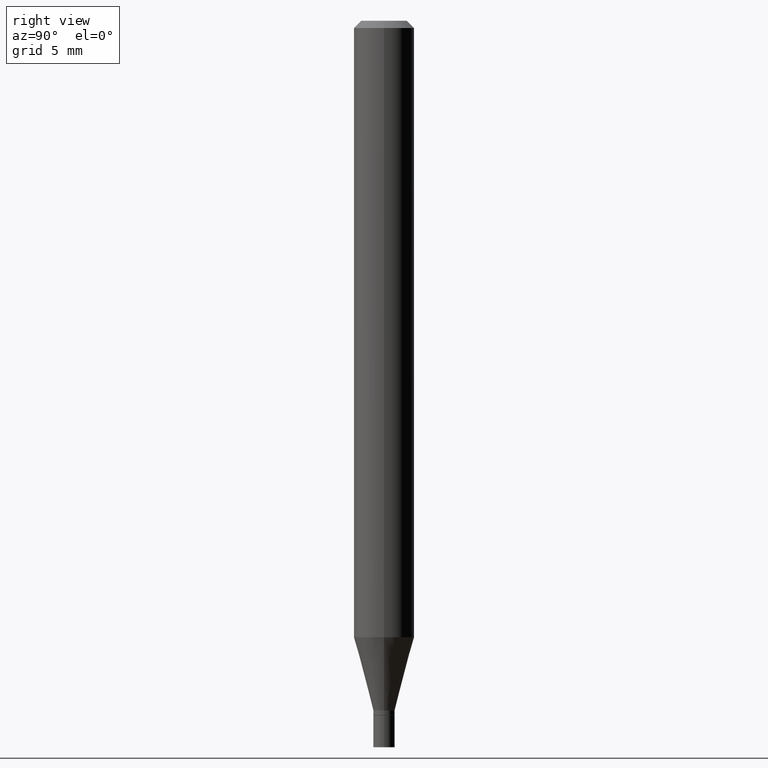
[diagram: clean part render]
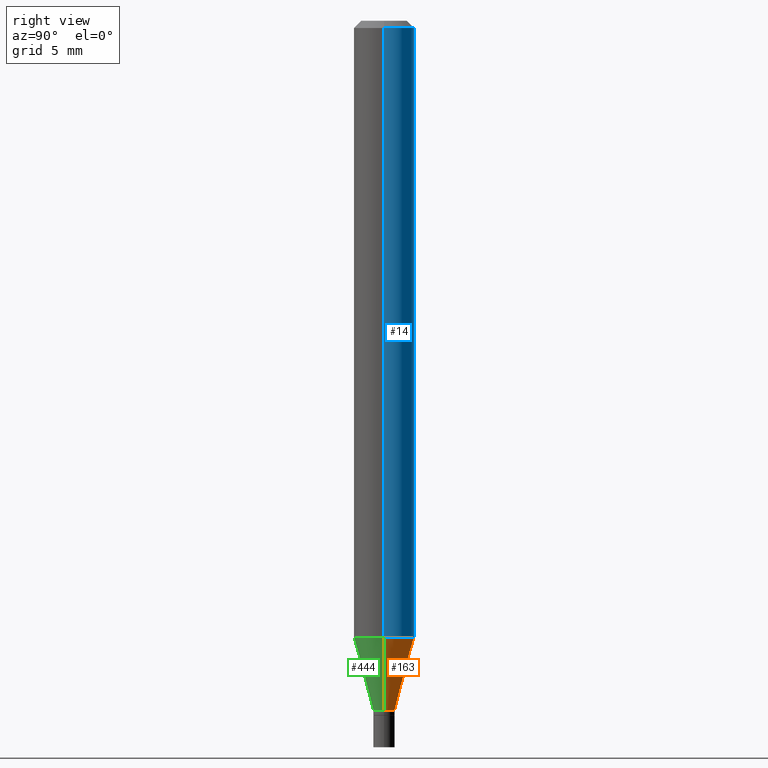
[diagram: same view with three faces highlighted in distinct colors, each labeled with its STEP entity id]
A machine part, right view with three faces highlighted in distinct colors.
Their STEP definitions:

[orange] entity #163 — the highlighted conical surface has half-angle 15 deg.
#4 = LINE ( 'NONE', #78, #251 ) ;
#8 = CARTESIAN_POINT ( 'NONE',  ( 3.482347580007634944E-29, -4.971869426512640168E-15, -1.424000000000000155 ) ) ;
#28 = VERTEX_POINT ( 'NONE', #389 ) ;
#32 = EDGE_CURVE ( 'NONE', #71, #414, #4, .T. ) ;
#38 = CARTESIAN_POINT ( 'NONE',  ( 0.02199999999999992240, -5.125494605421737215E-15, -1.424000000000000155 ) ) ;
#71 = VERTEX_POINT ( 'NONE', #38 ) ;
#78 = CARTESIAN_POINT ( 'NONE',  ( 0.02199999999999992240, -5.125494605421737215E-15, -1.424000000000000155 ) ) ;
#79 = VECTOR ( 'NONE', #86, 39.37007874015748143 ) ;
#86 = DIRECTION ( 'NONE',  ( -0.2588190451025215721, 5.211531920934551831E-15, 0.9659258262890679791 ) ) ;
#91 = CARTESIAN_POINT ( 'NONE',  ( 3.112719719770822202E-29, -4.444138803627871009E-15, -1.272851942293460770 ) ) ;
#95 = ORIENTED_EDGE ( 'NONE', *, *, #408, .T. ) ;
#96 = CARTESIAN_POINT ( 'NONE',  ( 0.06250000000000000000, -4.880573970983262678E-15, -1.272851942293460770 ) ) ;
#121 = DIRECTION ( 'NONE',  ( 1.000000000000000000, -6.982962677686269866E-15, 0.000000000000000000 ) ) ;
#123 = CARTESIAN_POINT ( 'NONE',  ( -0.02199999999999992240, -4.815550024645417988E-15, -1.424000000000000155 ) ) ;
#125 = AXIS2_PLACEMENT_3D ( 'NONE', #8, #294, #121 ) ;
#158 = FACE_OUTER_BOUND ( 'NONE', #316, .T. ) ;
#163 = ADVANCED_FACE ( 'NONE', ( #158 ), #206, .T. ) ;
#172 = DIRECTION ( 'NONE',  ( -2.445468806185136597E-29, 3.491481338843145583E-15, 1.000000000000000000 ) ) ;
#191 = AXIS2_PLACEMENT_3D ( 'NONE', #241, #449, #335 ) ;
#206 = CONICAL_SURFACE ( 'NONE', #125, 0.02199999999999992240, 0.2617993877991502960 ) ;
#209 = ORIENTED_EDGE ( 'NONE', *, *, #312, .F. ) ;
#237 = CARTESIAN_POINT ( 'NONE',  ( -0.06250000000000000000, -4.000049593777808392E-15, -1.272851942293460770 ) ) ;
#241 = CARTESIAN_POINT ( 'NONE',  ( 3.482347580007634944E-29, -4.971869426512640168E-15, -1.424000000000000155 ) ) ;
#243 = AXIS2_PLACEMENT_3D ( 'NONE', #91, #172, #309 ) ;
#247 = EDGE_CURVE ( 'NONE', #28, #337, #328, .T. ) ;
#251 = VECTOR ( 'NONE', #289, 39.37007874015748143 ) ;
#253 = CIRCLE ( 'NONE', #243, 0.06250000000000000000 ) ;
#289 = DIRECTION ( 'NONE',  ( 0.2588190451025215721, 1.565188264969619995E-15, 0.9659258262890679791 ) ) ;
#291 = ORIENTED_EDGE ( 'NONE', *, *, #32, .F. ) ;
#294 = DIRECTION ( 'NONE',  ( -2.445468806185136597E-29, 3.491481338843145583E-15, 1.000000000000000000 ) ) ;
#309 = DIRECTION ( 'NONE',  ( 1.000000000000000000, -6.982962677686262766E-15, 0.000000000000000000 ) ) ;
#312 = EDGE_CURVE ( 'NONE', #414, #337, #253, .T. ) ;
#316 = EDGE_LOOP ( 'NONE', ( #95, #385, #209, #291 ) ) ;
#328 = LINE ( 'NONE', #123, #79 ) ;
#335 = DIRECTION ( 'NONE',  ( 1.000000000000000000, -6.982962677686269866E-15, 0.000000000000000000 ) ) ;
#337 = VERTEX_POINT ( 'NONE', #237 ) ;
#385 = ORIENTED_EDGE ( 'NONE', *, *, #247, .T. ) ;
#389 = CARTESIAN_POINT ( 'NONE',  ( -0.02199999999999992240, -4.407799809211612796E-15, -1.424000000000000155 ) ) ;
#390 = CIRCLE ( 'NONE', #191, 0.02199999999999992240 ) ;
#408 = EDGE_CURVE ( 'NONE', #71, #28, #390, .T. ) ;
#414 = VERTEX_POINT ( 'NONE', #96 ) ;
#449 = DIRECTION ( 'NONE',  ( -2.445468806185136597E-29, 3.491481338843145583E-15, 1.000000000000000000 ) ) ;

[blue] entity #14 — the highlighted cylindrical surface (edge-blend (fillet) strip) has radius 1.5875 mm, axis along (-0, 0, 1).
#14 = ADVANCED_FACE ( 'NONE', ( #324 ), #257, .T. ) ;
#30 = ORIENTED_EDGE ( 'NONE', *, *, #406, .F. ) ;
#49 = CARTESIAN_POINT ( 'NONE',  ( -0.06250000000000000000, 4.440892098500626162E-16, -3.074334431409316114E-30 ) ) ;
#57 = AXIS2_PLACEMENT_3D ( 'NONE', #428, #323, #111 ) ;
#59 = CARTESIAN_POINT ( 'NONE',  ( -0.06250000000000000000, -1.804166302005196625E-15, -0.01499999999999999944 ) ) ;
#76 = ORIENTED_EDGE ( 'NONE', *, *, #85, .F. ) ;
#85 = EDGE_CURVE ( 'NONE', #414, #376, #440, .T. ) ;
#91 = CARTESIAN_POINT ( 'NONE',  ( 3.112719719770822202E-29, -4.444138803627871009E-15, -1.272851942293460770 ) ) ;
#96 = CARTESIAN_POINT ( 'NONE',  ( 0.06250000000000000000, -4.880573970983262678E-15, -1.272851942293460770 ) ) ;
#111 = DIRECTION ( 'NONE',  ( 1.000000000000000000, -6.982962677686266711E-15, 4.876176775795935793E-29 ) ) ;
#126 = LINE ( 'NONE', #49, #148 ) ;
#131 = AXIS2_PLACEMENT_3D ( 'NONE', #413, #417, #165 ) ;
#148 = VECTOR ( 'NONE', #263, 39.37007874015748143 ) ;
#165 = DIRECTION ( 'NONE',  ( 1.000000000000000000, -6.982962677686266711E-15, 0.000000000000000000 ) ) ;
#172 = DIRECTION ( 'NONE',  ( -2.445468806185136597E-29, 3.491481338843145583E-15, 1.000000000000000000 ) ) ;
#183 = EDGE_CURVE ( 'NONE', #337, #433, #126, .T. ) ;
#222 = ORIENTED_EDGE ( 'NONE', *, *, #183, .T. ) ;
#237 = CARTESIAN_POINT ( 'NONE',  ( -0.06250000000000000000, -4.000049593777808392E-15, -1.272851942293460770 ) ) ;
#243 = AXIS2_PLACEMENT_3D ( 'NONE', #91, #172, #309 ) ;
#253 = CIRCLE ( 'NONE', #243, 0.06250000000000000000 ) ;
#257 = CYLINDRICAL_SURFACE ( 'NONE', #57, 0.06250000000000000000 ) ;
#259 = ORIENTED_EDGE ( 'NONE', *, *, #312, .T. ) ;
#263 = DIRECTION ( 'NONE',  ( -2.445468806185136877E-29, 3.491481338843145188E-15, 1.000000000000000000 ) ) ;
#299 = CARTESIAN_POINT ( 'NONE',  ( 0.06250000000000000000, -4.364351673553916694E-16, 3.047610484872459871E-30 ) ) ;
#309 = DIRECTION ( 'NONE',  ( 1.000000000000000000, -6.982962677686262766E-15, 0.000000000000000000 ) ) ;
#312 = EDGE_CURVE ( 'NONE', #414, #337, #253, .T. ) ;
#323 = DIRECTION ( 'NONE',  ( -2.445468806185136597E-29, 3.491481338843145583E-15, 1.000000000000000000 ) ) ;
#324 = FACE_OUTER_BOUND ( 'NONE', #426, .T. ) ;
#329 = CIRCLE ( 'NONE', #131, 0.06250000000000000000 ) ;
#334 = VECTOR ( 'NONE', #405, 39.37007874015748143 ) ;
#337 = VERTEX_POINT ( 'NONE', #237 ) ;
#376 = VERTEX_POINT ( 'NONE', #455 ) ;
#405 = DIRECTION ( 'NONE',  ( -2.445468806185136877E-29, 3.491481338843145188E-15, 1.000000000000000000 ) ) ;
#406 = EDGE_CURVE ( 'NONE', #376, #433, #329, .T. ) ;
#413 = CARTESIAN_POINT ( 'NONE',  ( 3.668203209277705088E-31, -5.237222008264718399E-17, -0.01499999999999999944 ) ) ;
#414 = VERTEX_POINT ( 'NONE', #96 ) ;
#417 = DIRECTION ( 'NONE',  ( -2.445468806185136597E-29, 3.491481338843145583E-15, 1.000000000000000000 ) ) ;
#426 = EDGE_LOOP ( 'NONE', ( #259, #222, #30, #76 ) ) ;
#428 = CARTESIAN_POINT ( 'NONE',  ( 0.000000000000000000, 0.000000000000000000, 0.000000000000000000 ) ) ;
#433 = VERTEX_POINT ( 'NONE', #59 ) ;
#440 = LINE ( 'NONE', #299, #334 ) ;
#455 = CARTESIAN_POINT ( 'NONE',  ( 0.06250000000000000000, -4.888073874380388472E-16, -0.01499999999999999944 ) ) ;

[green] entity #444 — the highlighted conical surface has half-angle 15 deg.
#4 = LINE ( 'NONE', #78, #251 ) ;
#27 = CARTESIAN_POINT ( 'NONE',  ( 3.482347580007634944E-29, -4.971869426512640168E-15, -1.424000000000000155 ) ) ;
#28 = VERTEX_POINT ( 'NONE', #389 ) ;
#32 = EDGE_CURVE ( 'NONE', #71, #414, #4, .T. ) ;
#38 = CARTESIAN_POINT ( 'NONE',  ( 0.02199999999999992240, -5.125494605421737215E-15, -1.424000000000000155 ) ) ;
#71 = VERTEX_POINT ( 'NONE', #38 ) ;
#78 = CARTESIAN_POINT ( 'NONE',  ( 0.02199999999999992240, -5.125494605421737215E-15, -1.424000000000000155 ) ) ;
#79 = VECTOR ( 'NONE', #86, 39.37007874015748143 ) ;
#86 = DIRECTION ( 'NONE',  ( -0.2588190451025215721, 5.211531920934551831E-15, 0.9659258262890679791 ) ) ;
#96 = CARTESIAN_POINT ( 'NONE',  ( 0.06250000000000000000, -4.880573970983262678E-15, -1.272851942293460770 ) ) ;
#114 = EDGE_CURVE ( 'NONE', #337, #414, #429, .T. ) ;
#123 = CARTESIAN_POINT ( 'NONE',  ( -0.02199999999999992240, -4.815550024645417988E-15, -1.424000000000000155 ) ) ;
#132 = DIRECTION ( 'NONE',  ( -2.445468806185136597E-29, 3.491481338843145583E-15, 1.000000000000000000 ) ) ;
#173 = EDGE_LOOP ( 'NONE', ( #176, #344, #205, #255 ) ) ;
#176 = ORIENTED_EDGE ( 'NONE', *, *, #247, .F. ) ;
#182 = DIRECTION ( 'NONE',  ( -2.445468806185136597E-29, 3.491481338843145583E-15, 1.000000000000000000 ) ) ;
#196 = DIRECTION ( 'NONE',  ( 1.000000000000000000, -6.982962677686262766E-15, 0.000000000000000000 ) ) ;
#201 = FACE_OUTER_BOUND ( 'NONE', #173, .T. ) ;
#205 = ORIENTED_EDGE ( 'NONE', *, *, #32, .T. ) ;
#220 = DIRECTION ( 'NONE',  ( 1.000000000000000000, -6.982962677686269866E-15, 0.000000000000000000 ) ) ;
#236 = AXIS2_PLACEMENT_3D ( 'NONE', #322, #182, #220 ) ;
#237 = CARTESIAN_POINT ( 'NONE',  ( -0.06250000000000000000, -4.000049593777808392E-15, -1.272851942293460770 ) ) ;
#247 = EDGE_CURVE ( 'NONE', #28, #337, #328, .T. ) ;
#251 = VECTOR ( 'NONE', #289, 39.37007874015748143 ) ;
#255 = ORIENTED_EDGE ( 'NONE', *, *, #114, .F. ) ;
#270 = DIRECTION ( 'NONE',  ( -2.445468806185136597E-29, 3.491481338843145583E-15, 1.000000000000000000 ) ) ;
#277 = DIRECTION ( 'NONE',  ( 1.000000000000000000, -6.982962677686269866E-15, 0.000000000000000000 ) ) ;
#289 = DIRECTION ( 'NONE',  ( 0.2588190451025215721, 1.565188264969619995E-15, 0.9659258262890679791 ) ) ;
#322 = CARTESIAN_POINT ( 'NONE',  ( 3.482347580007634944E-29, -4.971869426512640168E-15, -1.424000000000000155 ) ) ;
#328 = LINE ( 'NONE', #123, #79 ) ;
#337 = VERTEX_POINT ( 'NONE', #237 ) ;
#344 = ORIENTED_EDGE ( 'NONE', *, *, #378, .T. ) ;
#351 = AXIS2_PLACEMENT_3D ( 'NONE', #27, #132, #277 ) ;
#366 = CIRCLE ( 'NONE', #351, 0.02199999999999992240 ) ;
#378 = EDGE_CURVE ( 'NONE', #28, #71, #366, .T. ) ;
#389 = CARTESIAN_POINT ( 'NONE',  ( -0.02199999999999992240, -4.407799809211612796E-15, -1.424000000000000155 ) ) ;
#400 = CONICAL_SURFACE ( 'NONE', #236, 0.02199999999999992240, 0.2617993877991502960 ) ;
#414 = VERTEX_POINT ( 'NONE', #96 ) ;
#429 = CIRCLE ( 'NONE', #462, 0.06250000000000000000 ) ;
#444 = ADVANCED_FACE ( 'NONE', ( #201 ), #400, .T. ) ;
#448 = CARTESIAN_POINT ( 'NONE',  ( 3.112719719770822202E-29, -4.444138803627871009E-15, -1.272851942293460770 ) ) ;
#462 = AXIS2_PLACEMENT_3D ( 'NONE', #448, #270, #196 ) ;